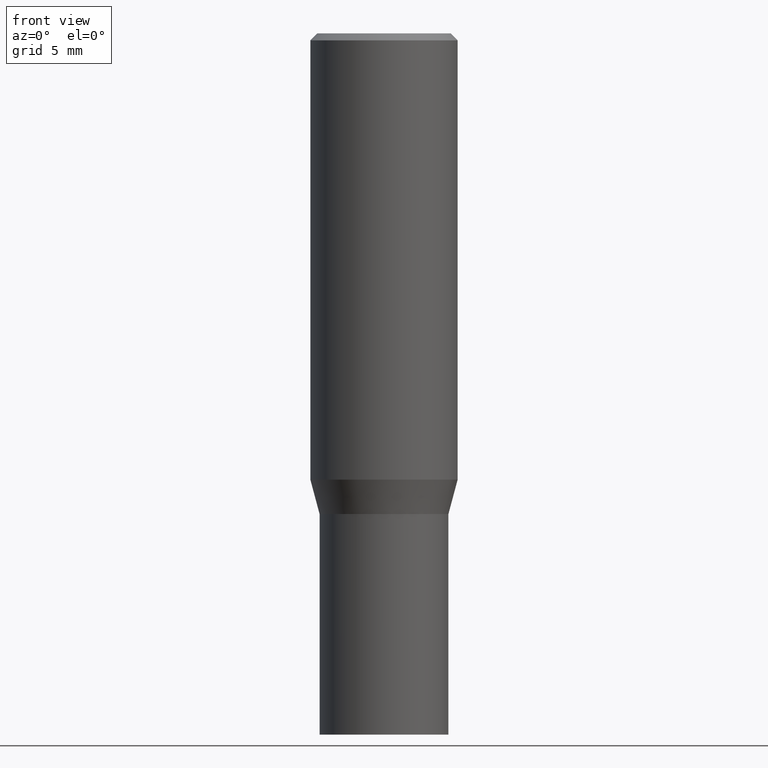
[diagram: clean part render]
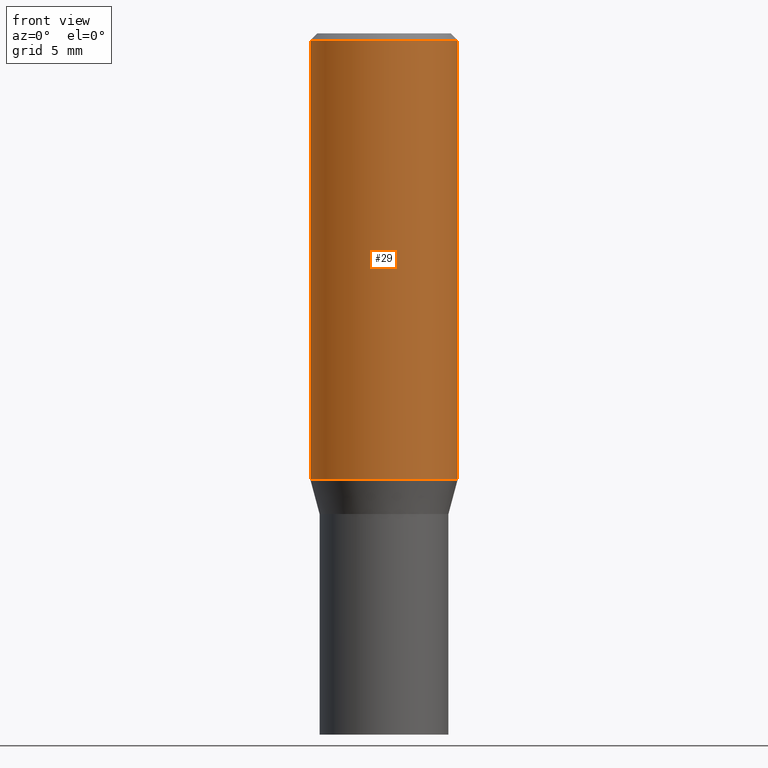
[diagram: same view with one face highlighted and labeled with its STEP entity id]
A machine part, front view. The second image highlights one B-rep face of the part: STEP entity #29.
In plain terms, the highlighted cylindrical surface (partial cylindrical patch) has radius 4.0005 mm, axis along (-0, 0, 1).
Its self-contained STEP definition (entity closure, byte-faithful):
#5 = DIRECTION ( 'NONE',  ( -2.445468806185136877E-29, 3.491481338843145188E-15, 1.000000000000000000 ) ) ;
#28 = CIRCLE ( 'NONE', #146, 0.1575000000000000011 ) ;
#29 = ADVANCED_FACE ( 'NONE', ( #126 ), #197, .T. ) ;
#30 = CARTESIAN_POINT ( 'NONE',  ( 3.668203209277705088E-31, -5.237222008264718399E-17, -0.01499999999999999944 ) ) ;
#47 = EDGE_CURVE ( 'NONE', #94, #200, #167, .T. ) ;
#54 = VECTOR ( 'NONE', #5, 39.37007874015748143 ) ;
#74 = CARTESIAN_POINT ( 'NONE',  ( 0.1575000000000000011, -4.432360838786593040E-15, -0.9544785990908941642 ) ) ;
#85 = CARTESIAN_POINT ( 'NONE',  ( -0.1575000000000000011, -2.213439408228846773E-15, -0.9544785990908941642 ) ) ;
#94 = VERTEX_POINT ( 'NONE', #85 ) ;
#101 = VERTEX_POINT ( 'NONE', #296 ) ;
#103 = ORIENTED_EDGE ( 'NONE', *, *, #47, .F. ) ;
#104 = AXIS2_PLACEMENT_3D ( 'NONE', #30, #324, #218 ) ;
#106 = ORIENTED_EDGE ( 'NONE', *, *, #214, .T. ) ;
#117 = AXIS2_PLACEMENT_3D ( 'NONE', #344, #161, #439 ) ;
#126 = FACE_OUTER_BOUND ( 'NONE', #163, .T. ) ;
#146 = AXIS2_PLACEMENT_3D ( 'NONE', #361, #359, #215 ) ;
#161 = DIRECTION ( 'NONE',  ( -2.445468806185136597E-29, 3.491481338843145583E-15, 1.000000000000000000 ) ) ;
#163 = EDGE_LOOP ( 'NONE', ( #103, #106, #360, #313 ) ) ;
#167 = LINE ( 'NONE', #263, #54 ) ;
#186 = CARTESIAN_POINT ( 'NONE',  ( 0.1575000000000000011, -1.099816621735586889E-15, 7.679978421878598033E-30 ) ) ;
#187 = VECTOR ( 'NONE', #270, 39.37007874015748143 ) ;
#197 = CYLINDRICAL_SURFACE ( 'NONE', #117, 0.1575000000000000011 ) ;
#200 = VERTEX_POINT ( 'NONE', #326 ) ;
#204 = VERTEX_POINT ( 'NONE', #74 ) ;
#214 = EDGE_CURVE ( 'NONE', #94, #204, #28, .T. ) ;
#215 = DIRECTION ( 'NONE',  ( 1.000000000000000000, -6.982962677686264344E-15, 0.000000000000000000 ) ) ;
#218 = DIRECTION ( 'NONE',  ( 1.000000000000000000, -6.982962677686265922E-15, 0.000000000000000000 ) ) ;
#238 = EDGE_CURVE ( 'NONE', #200, #101, #275, .T. ) ;
#262 = EDGE_CURVE ( 'NONE', #204, #101, #266, .T. ) ;
#263 = CARTESIAN_POINT ( 'NONE',  ( -0.1575000000000000011, 1.119104808822157801E-15, -7.747322767151475583E-30 ) ) ;
#266 = LINE ( 'NONE', #186, #187 ) ;
#270 = DIRECTION ( 'NONE',  ( -2.445468806185136877E-29, 3.491481338843145188E-15, 1.000000000000000000 ) ) ;
#275 = CIRCLE ( 'NONE', #104, 0.1575000000000000011 ) ;
#296 = CARTESIAN_POINT ( 'NONE',  ( 0.1575000000000000011, -1.152188841818234165E-15, -0.01499999999999999944 ) ) ;
#313 = ORIENTED_EDGE ( 'NONE', *, *, #238, .F. ) ;
#324 = DIRECTION ( 'NONE',  ( -2.445468806185136597E-29, 3.491481338843145583E-15, 1.000000000000000000 ) ) ;
#326 = CARTESIAN_POINT ( 'NONE',  ( -0.1575000000000000011, -5.733534097446686172E-16, -0.01499999999999999944 ) ) ;
#344 = CARTESIAN_POINT ( 'NONE',  ( 0.000000000000000000, 0.000000000000000000, 0.000000000000000000 ) ) ;
#359 = DIRECTION ( 'NONE',  ( -2.445468806185136597E-29, 3.491481338843145583E-15, 1.000000000000000000 ) ) ;
#360 = ORIENTED_EDGE ( 'NONE', *, *, #262, .T. ) ;
#361 = CARTESIAN_POINT ( 'NONE',  ( 2.334147640248070557E-29, -3.332544217051005165E-15, -0.9544785990908941642 ) ) ;
#439 = DIRECTION ( 'NONE',  ( 1.000000000000000000, -6.982962677686265922E-15, 4.876176775795935232E-29 ) ) ;